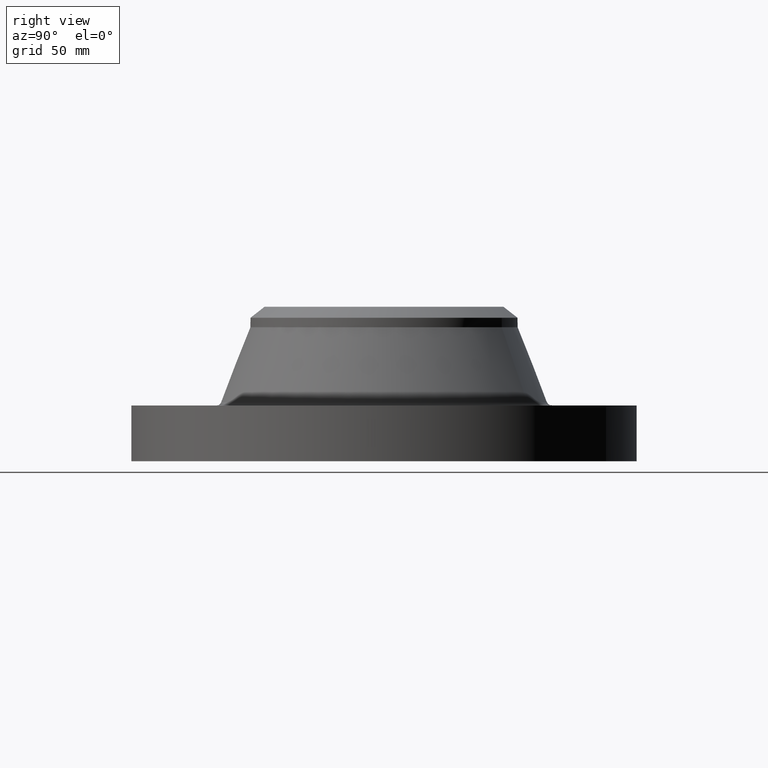
[diagram: clean part render]
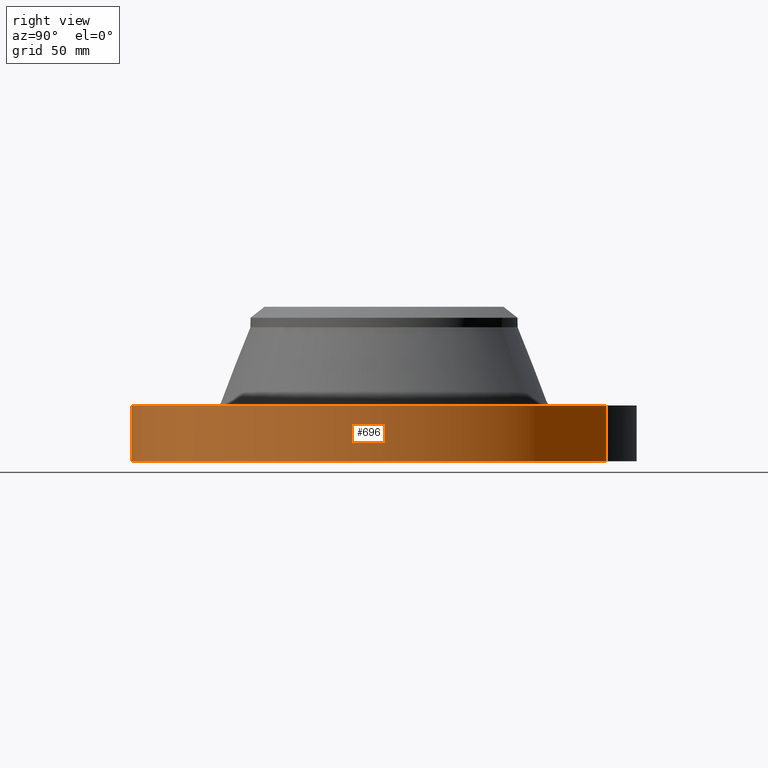
[diagram: same view with one face highlighted and labeled with its STEP entity id]
A machine part, right view. The second image highlights one B-rep face of the part: STEP entity #696.
In plain terms, the highlighted cylindrical surface (partial cylindrical patch) has radius 158.75 mm, axis along (0, 0, -1).
Its self-contained STEP definition (entity closure, byte-faithful):
#152=AXIS2_PLACEMENT_3D('Circle Axis2P3D',#150,#151,$) ;
#394=AXIS2_PLACEMENT_3D('Circle Axis2P3D',#392,#393,$) ;
#688=AXIS2_PLACEMENT_3D('Cylinder Axis2P3D',#685,#686,#687) ;
#145=CARTESIAN_POINT('Vertex',(-2.99640961629,-5.48489101184,8.39223703654E-016)) ;
#147=CARTESIAN_POINT('Vertex',(2.99640961629,5.48489101184,-7.0139519739E-012)) ;
#150=CARTESIAN_POINT('Axis2P3D Location',(1.28099106126E-011,-1.85294998942E-011,0.)) ;
#392=CARTESIAN_POINT('Axis2P3D Location',(1.28099106126E-011,-2.36649894781E-011,1.38000000001)) ;
#396=CARTESIAN_POINT('Vertex',(2.99640961629,5.48489101182,1.38000000001)) ;
#398=CARTESIAN_POINT('Vertex',(-2.99640961629,-5.48489101184,1.38000000004)) ;
#661=CARTESIAN_POINT('Line Origine',(-2.99640961629,-5.48489101184,0.690000000014)) ;
#666=CARTESIAN_POINT('Line Origine',(2.99640961629,5.48489101184,0.690000000014)) ;
#685=CARTESIAN_POINT('Axis2P3D Location',(0.,0.,1.91000000001)) ;
#151=DIRECTION('Axis2P3D Direction',(0.,0.,-0.0393700787402)) ;
#393=DIRECTION('Axis2P3D Direction',(0.,0.,-0.0393700787402)) ;
#662=DIRECTION('Vector Direction',(0.,0.,-0.0393700787402)) ;
#667=DIRECTION('Vector Direction',(0.,0.,-0.0393700787402)) ;
#686=DIRECTION('Axis2P3D Direction',(0.,0.,-0.0393700787402)) ;
#687=DIRECTION('Axis2P3D XDirection',(0.0188750212049,0.0345504945626,0.)) ;
#663=VECTOR('Line Direction',#662,0.0393700787402) ;
#668=VECTOR('Line Direction',#667,0.0393700787402) ;
#691=ORIENTED_EDGE('',*,*,#154,.F.) ;
#692=ORIENTED_EDGE('',*,*,#670,.T.) ;
#693=ORIENTED_EDGE('',*,*,#400,.T.) ;
#694=ORIENTED_EDGE('',*,*,#665,.F.) ;
#696=ADVANCED_FACE('PartBody',(#695),#689,.T.) ;
#153=CIRCLE('generated circle',#152,6.25000000003) ;
#395=CIRCLE('generated circle',#394,6.25000000003) ;
#689=CYLINDRICAL_SURFACE('generated cylinder',#688,6.25000000003) ;
#154=EDGE_CURVE('',#148,#146,#153,.T.) ;
#400=EDGE_CURVE('',#397,#399,#395,.T.) ;
#665=EDGE_CURVE('',#146,#399,#664,.F.) ;
#670=EDGE_CURVE('',#148,#397,#669,.F.) ;
#690=EDGE_LOOP('',(#691,#692,#693,#694)) ;
#695=FACE_OUTER_BOUND('',#690,.T.) ;
#664=LINE('Line',#661,#663) ;
#669=LINE('Line',#666,#668) ;
#146=VERTEX_POINT('',#145) ;
#148=VERTEX_POINT('',#147) ;
#397=VERTEX_POINT('',#396) ;
#399=VERTEX_POINT('',#398) ;